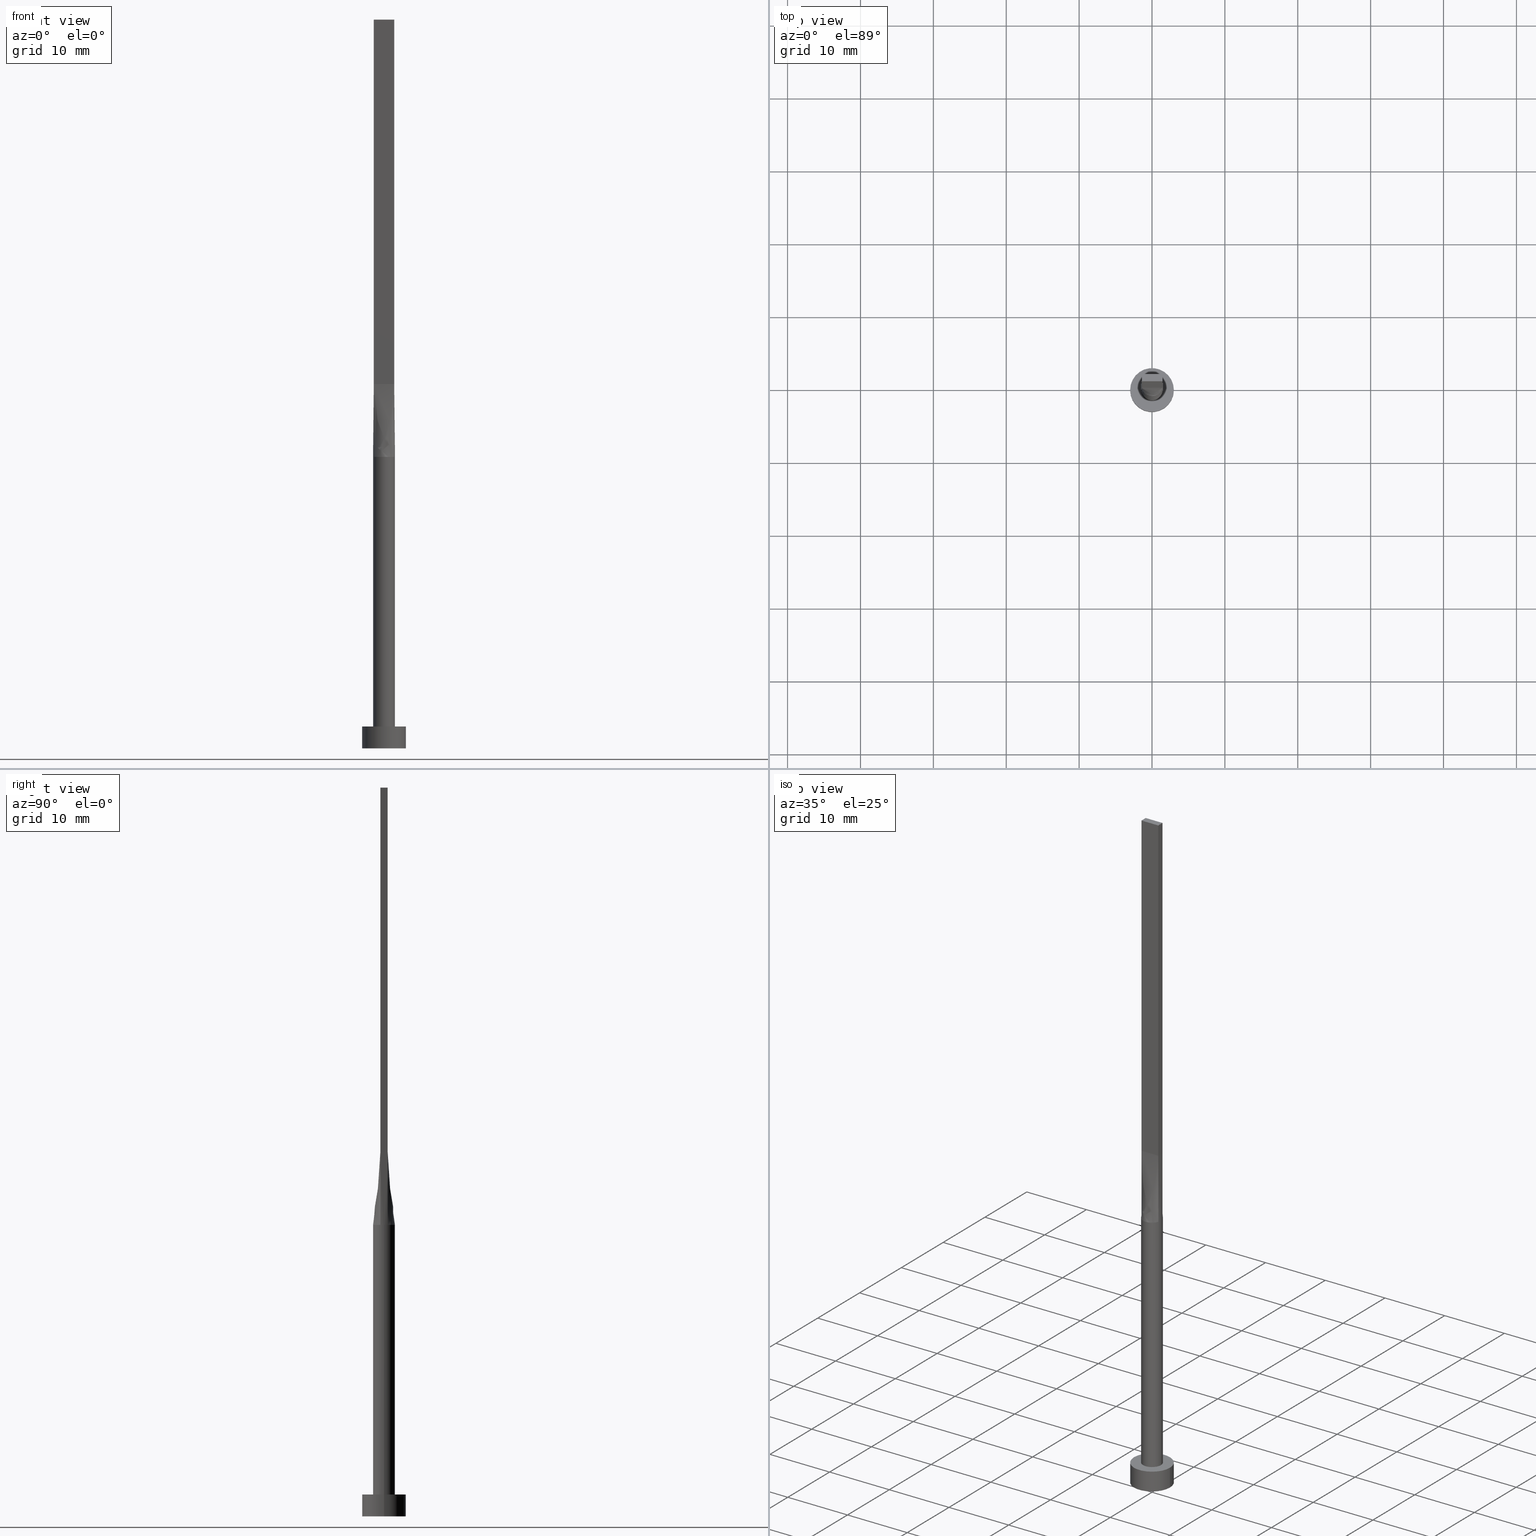
[diagram: canonical four-view strip — front | top / right | iso, engineering-drawing reading convention]
A machine part, canonical four-view strip (front | top / right | iso — engineering-drawing reading convention). The complete STEP part file that produces these views, byte-faithful:
ISO-10303-21;
HEADER;
FILE_DESCRIPTION (( 'STEP AP203' ),
    '1' );
FILE_NAME ('2857.STEP',
    '2026-02-12T09:08:00',
    ( '' ),
    ( '' ),
    'SwSTEP 2.0',
    'SolidWorks 2019',
    '' );
FILE_SCHEMA (( 'CONFIG_CONTROL_DESIGN' ));
ENDSEC;

DATA;
#1 = B_SPLINE_SURFACE_WITH_KNOTS ( 'NONE', 3, 1, ( 
 ( #51, #526 ),
 ( #124, #311 ),
 ( #492, #498 ),
 ( #284, #402 ),
 ( #477, #165 ),
 ( #249, #388 ) ),
 .UNSPECIFIED., .F., .F., .F.,
 ( 4, 2, 4 ),
 ( 2, 2 ),
 ( 0.000000000000000000, 0.5000000000000000000, 1.000000000000000000 ),
 ( 0.000000000000000000, 1.000000000000000000 ),
 .UNSPECIFIED. ) ;
#2 = DIRECTION ( 'NONE',  ( 0.000000000000000000, 0.000000000000000000, 1.000000000000000000 ) ) ;
#3 = CARTESIAN_POINT ( 'NONE',  ( -0.5833333333333332593, -0.4999999999999996669, 50.00000000000000711 ) ) ;
#4 = LINE ( 'NONE', #274, #140 ) ;
#5 = APPROVAL_DATE_TIME ( #38, #123 ) ;
#6 = CARTESIAN_POINT ( 'NONE',  ( 1.399999999999999689, 0.5000000000000002220, 100.0000000000000000 ) ) ;
#7 = ORIENTED_EDGE ( 'NONE', *, *, #436, .T. ) ;
#8 = DIRECTION ( 'NONE',  ( 1.000000000000000000, -7.744301232039317914E-17, 0.000000000000000000 ) ) ;
#9 = DIRECTION ( 'NONE',  ( 1.000000000000000000, 0.000000000000000000, 0.000000000000000000 ) ) ;
#10 = ORIENTED_EDGE ( 'NONE', *, *, #158, .T. ) ;
#11 = EDGE_CURVE ( 'NONE', #344, #238, #507, .T. ) ;
#12 = CARTESIAN_POINT ( 'NONE',  ( 0.000000000000000000, 0.000000000000000000, 3.000000000000000000 ) ) ;
#13 = ORIENTED_EDGE ( 'NONE', *, *, #227, .T. ) ;
#14 = ORIENTED_EDGE ( 'NONE', *, *, #372, .T. ) ;
#15 = PERSON_AND_ORGANIZATION_ROLE ( 'design_supplier' ) ;
#16 = VERTEX_POINT ( 'NONE', #315 ) ;
#17 = AXIS2_PLACEMENT_3D ( 'NONE', #88, #430, #42 ) ;
#18 = CARTESIAN_POINT ( 'NONE',  ( -1.316960349798174557, 0.7311494208568980468, 40.00000000000001421 ) ) ;
#19 = ORIENTED_EDGE ( 'NONE', *, *, #334, .F. ) ;
#20 = CARTESIAN_POINT ( 'NONE',  ( -1.399999999999999689, 0.5000000000000002220, 100.0000000000000000 ) ) ;
#21 = EDGE_CURVE ( 'NONE', #81, #238, #450, .T. ) ;
#22 = EDGE_LOOP ( 'NONE', ( #106, #58, #563, #459 ) ) ;
#23 = CARTESIAN_POINT ( 'NONE',  ( -1.373020107211261109, -0.6153643240040214124, 39.99999999999999289 ) ) ;
#24 = EDGE_LOOP ( 'NONE', ( #475, #510, #412, #432 ) ) ;
#25 = DIRECTION ( 'NONE',  ( -2.168404344971009361E-16, -1.000000000000000000, 0.000000000000000000 ) ) ;
#26 = DIRECTION ( 'NONE',  ( 0.000000000000000000, 0.000000000000000000, 1.000000000000000000 ) ) ;
#27 = CARTESIAN_POINT ( 'NONE',  ( -1.399999999999999689, 0.5000000000000002220, 100.0000000000000000 ) ) ;
#28 = CARTESIAN_POINT ( 'NONE',  ( 1.500000000000000222, 1.836970198721030181E-16, 3.000000000000000000 ) ) ;
#29 = CARTESIAN_POINT ( 'NONE',  ( 0.8182264876570946033, -1.266912425724810998, 40.00000000000000000 ) ) ;
#30 = CARTESIAN_POINT ( 'NONE',  ( 0.4666666666666705598, 0.5000000000000002220, 50.00000000000000711 ) ) ;
#31 = AXIS2_PLACEMENT_3D ( 'NONE', #89, #283, #50 ) ;
#32 = CARTESIAN_POINT ( 'NONE',  ( 1.373020107211261109, 0.6153643240040217455, 39.99999999999999289 ) ) ;
#33 = DIRECTION ( 'NONE',  ( 1.000000000000000000, 0.000000000000000000, 0.000000000000000000 ) ) ;
#34 = DIRECTION ( 'NONE',  ( 1.000000000000000000, 0.000000000000000000, 0.000000000000000000 ) ) ;
#35 = VECTOR ( 'NONE', #353, 1000.000000000000000 ) ;
#36 = CARTESIAN_POINT ( 'NONE',  ( -1.062433464748102407, 1.070418989248103525, 39.99999999999998579 ) ) ;
#37 = CARTESIAN_POINT ( 'NONE',  ( 1.412612867392256222, 0.5045045954972349200, 40.00000000000000000 ) ) ;
#38 = DATE_AND_TIME ( #175, #210 ) ;
#39 = DIRECTION ( 'NONE',  ( 0.001261285608005575801, -0.0004504591457162011002, 0.9999991031221843185 ) ) ;
#40 = ORIENTED_EDGE ( 'NONE', *, *, #359, .F. ) ;
#41 = ORIENTED_EDGE ( 'NONE', *, *, #105, .F. ) ;
#42 = DIRECTION ( 'NONE',  ( 2.168404344971008868E-16, -1.000000000000000000, 0.000000000000000000 ) ) ;
#43 = ADVANCED_FACE ( 'NONE', ( #233, #139 ), #95, .T. ) ;
#44 = ADVANCED_FACE ( 'NONE', ( #47 ), #416, .F. ) ;
#45 = ADVANCED_FACE ( 'NONE', ( #52 ), #366, .F. ) ;
#46 = CYLINDRICAL_SURFACE ( 'NONE', #509, 3.000000000000000444 ) ;
#47 = FACE_OUTER_BOUND ( 'NONE', #248, .T. ) ;
#48 = CARTESIAN_POINT ( 'NONE',  ( -1.399999999999999911, -0.4999999999999995559, 100.0000000000000000 ) ) ;
#49 = VERTEX_POINT ( 'NONE', #277 ) ;
#50 = DIRECTION ( 'NONE',  ( 1.000000000000000000, 0.000000000000000000, 0.000000000000000000 ) ) ;
#51 = CARTESIAN_POINT ( 'NONE',  ( -1.412612867392256444, 0.5045045954972343649, 40.00000000000000000 ) ) ;
#52 = FACE_OUTER_BOUND ( 'NONE', #375, .T. ) ;
#53 = DIRECTION ( 'NONE',  ( 7.744301232039317914E-17, 1.000000000000000000, -0.000000000000000000 ) ) ;
#54 = CARTESIAN_POINT ( 'NONE',  ( -1.399999999999999689, 0.5000000000000002220, 100.0000000000000000 ) ) ;
#55 = EDGE_CURVE ( 'NONE', #83, #453, #138, .T. ) ;
#56 = PERSON_AND_ORGANIZATION ( #577, #561 ) ;
#57 = DIRECTION ( 'NONE',  ( 0.000000000000000000, 0.000000000000000000, 1.000000000000000000 ) ) ;
#58 = ORIENTED_EDGE ( 'NONE', *, *, #359, .T. ) ;
#59 = CALENDAR_DATE ( 2026, 12, 2 ) ;
#60 = VERTEX_POINT ( 'NONE', #192 ) ;
#61 = VERTEX_POINT ( 'NONE', #550 ) ;
#62 = AXIS2_PLACEMENT_3D ( 'NONE', #12, #327, #195 ) ;
#63 = PLANE ( 'NONE',  #245 ) ;
#64 = EDGE_CURVE ( 'NONE', #380, #238, #538, .T. ) ;
#65 = CIRCLE ( 'NONE', #301, 3.000000000000000444 ) ;
#66 = CARTESIAN_POINT ( 'NONE',  ( -0.1761797990592596230, -1.500000000000000000, 40.00000000000000000 ) ) ;
#67 = ORIENTED_EDGE ( 'NONE', *, *, #389, .F. ) ;
#68 = CARTESIAN_POINT ( 'NONE',  ( 0.1166666666666668073, -0.4999999999999997780, 50.00000000000000711 ) ) ;
#69 = CC_DESIGN_PERSON_AND_ORGANIZATION_ASSIGNMENT ( #169, #358, ( #497 ) ) ;
#70 = CARTESIAN_POINT ( 'NONE',  ( 3.000000000000000444, 3.673940397442060361E-16, 3.000000000000000000 ) ) ;
#71 = CARTESIAN_POINT ( 'NONE',  ( 0.000000000000000000, 0.000000000000000000, 0.000000000000000000 ) ) ;
#72 = APPROVAL_ROLE ( '' ) ;
#73 =( LENGTH_UNIT ( ) NAMED_UNIT ( * ) SI_UNIT ( .MILLI., .METRE. ) );
#74 = DIRECTION ( 'NONE',  ( 0.000000000000000000, 0.000000000000000000, 1.000000000000000000 ) ) ;
#75 = AXIS2_PLACEMENT_3D ( 'NONE', #141, #182, #472 ) ;
#76 = APPROVAL_STATUS ( 'not_yet_approved' ) ;
#77 = APPLICATION_PROTOCOL_DEFINITION ( 'international standard', 'config_control_design', 1994, #84 ) ;
#78 = ORIENTED_EDGE ( 'NONE', *, *, #294, .F. ) ;
#79 = CARTESIAN_POINT ( 'NONE',  ( -0.3520402531411755964, -1.468082505288407447, 40.00000000000000000 ) ) ;
#80 = PERSON_AND_ORGANIZATION_ROLE ( 'creator' ) ;
#81 = VERTEX_POINT ( 'NONE', #320 ) ;
#82 = EDGE_CURVE ( 'NONE', #16, #423, #438, .T. ) ;
#83 = VERTEX_POINT ( 'NONE', #331 ) ;
#84 = APPLICATION_CONTEXT ( 'configuration controlled 3d designs of mechanical parts and assemblies' ) ;
#85 = DIRECTION ( 'NONE',  ( 0.000000000000000000, 0.000000000000000000, 1.000000000000000000 ) ) ;
#86 = ORIENTED_EDGE ( 'NONE', *, *, #227, .F. ) ;
#87 = ORIENTED_EDGE ( 'NONE', *, *, #396, .T. ) ;
#88 = CARTESIAN_POINT ( 'NONE',  ( 1.399999999999999911, -0.4999999999999997780, 100.0000000000000000 ) ) ;
#89 = CARTESIAN_POINT ( 'NONE',  ( 0.000000000000000000, 0.000000000000000000, 3.000000000000000000 ) ) ;
#90 = PERSON_AND_ORGANIZATION ( #577, #561 ) ;
#91 = CARTESIAN_POINT ( 'NONE',  ( -1.406306433696127955, 0.5022522977486171269, 45.00000000000000000 ) ) ;
#92 = ORIENTED_EDGE ( 'NONE', *, *, #156, .F. ) ;
#93 = CARTESIAN_POINT ( 'NONE',  ( -1.500000000000000000, -6.850053904551815961E-17, 40.00000000000000711 ) ) ;
#94 = PERSON_AND_ORGANIZATION ( #577, #561 ) ;
#95 = PLANE ( 'NONE',  #62 ) ;
#96 = ORIENTED_EDGE ( 'NONE', *, *, #107, .T. ) ;
#97 = CARTESIAN_POINT ( 'NONE',  ( -0.9333333333333307946, 0.5000000000000002220, 50.00000000000000000 ) ) ;
#98 = EDGE_LOOP ( 'NONE', ( #292, #205, #316, #471 ) ) ;
#99 = AXIS2_PLACEMENT_3D ( 'NONE', #184, #74, #449 ) ;
#100 = CC_DESIGN_SECURITY_CLASSIFICATION ( #114, ( #154 ) ) ;
#101 = FACE_OUTER_BOUND ( 'NONE', #278, .T. ) ;
#102 = CARTESIAN_POINT ( 'NONE',  ( 0.6732153042498572049, -1.351288176626052939, 40.00000000000000000 ) ) ;
#103 = ORIENTED_EDGE ( 'NONE', *, *, #107, .F. ) ;
#104 = CARTESIAN_POINT ( 'NONE',  ( -0.8166666666666667629, -0.4999999999999996669, 50.00000000000000000 ) ) ;
#105 = EDGE_CURVE ( 'NONE', #160, #60, #541, .T. ) ;
#106 = ORIENTED_EDGE ( 'NONE', *, *, #105, .T. ) ;
#107 = EDGE_CURVE ( 'NONE', #367, #529, #244, .T. ) ;
#108 = CARTESIAN_POINT ( 'NONE',  ( -1.161819288130433891, 0.9587178835757675932, 40.00000000000000711 ) ) ;
#109 = CARTESIAN_POINT ( 'NONE',  ( -1.399999999999999689, 0.5000000000000002220, 50.00000000000000000 ) ) ;
#110 = LINE ( 'NONE', #27, #518 ) ;
#111 = CARTESIAN_POINT ( 'NONE',  ( 1.412612867392256222, -0.5045045954972348090, 40.00000000000000000 ) ) ;
#112 = CIRCLE ( 'NONE', #363, 1.500000000000000222 ) ;
#113 = CYLINDRICAL_SURFACE ( 'NONE', #215, 1.500000000000000222 ) ;
#114 = SECURITY_CLASSIFICATION ( '', '', #470 ) ;
#115 = EDGE_CURVE ( 'NONE', #209, #160, #499, .T. ) ;
#116 = CARTESIAN_POINT ( 'NONE',  ( -0.1166666666666622831, 0.5000000000000002220, 50.00000000000000711 ) ) ;
#117 = CARTESIAN_POINT ( 'NONE',  ( -1.316960349798174557, 0.7311494208568980468, 40.00000000000001421 ) ) ;
#118 = CIRCLE ( 'NONE', #199, 1.500000000000000222 ) ;
#119 = LINE ( 'NONE', #262, #569 ) ;
#120 = CARTESIAN_POINT ( 'NONE',  ( 0.6732153042498577600, 1.351288176626052717, 40.00000000000000000 ) ) ;
#121 = DATE_AND_TIME ( #524, #364 ) ;
#122 = CARTESIAN_POINT ( 'NONE',  ( 0.8166666666666695384, 0.5000000000000002220, 50.00000000000000000 ) ) ;
#123 = APPROVAL ( #76, 'NEUR�EN�' ) ;
#124 = CARTESIAN_POINT ( 'NONE',  ( -1.469173953365106922, 0.3461335547732524165, 39.99999999999999289 ) ) ;
#125 = CARTESIAN_POINT ( 'NONE',  ( 0.8182264876570948253, 1.266912425724810110, 40.00000000000000000 ) ) ;
#126 = COORDINATED_UNIVERSAL_TIME_OFFSET ( 1, 0, .AHEAD. ) ;
#127 = CARTESIAN_POINT ( 'NONE',  ( -1.406306433696128178, -0.5022522977486166829, 45.00000000000000000 ) ) ;
#128 = CARTESIAN_POINT ( 'NONE',  ( 1.406306433696127955, 0.5022522977486175710, 45.00000000000000000 ) ) ;
#129 = CC_DESIGN_APPROVAL ( #397, ( #114 ) ) ;
#130 = CARTESIAN_POINT ( 'NONE',  ( -0.6732153042498583151, -1.351288176626052051, 40.00000000000000000 ) ) ;
#131 = PRODUCT_DEFINITION_SHAPE ( 'NONE', 'NONE',  #295 ) ;
#132 = APPLICATION_CONTEXT ( 'configuration controlled 3d designs of mechanical parts and assemblies' ) ;
#133 = LINE ( 'NONE', #307, #455 ) ;
#134 = EDGE_LOOP ( 'NONE', ( #467, #10, #87, #103, #504, #78 ) ) ;
#135 = ORIENTED_EDGE ( 'NONE', *, *, #573, .T. ) ;
#136 = CARTESIAN_POINT ( 'NONE',  ( -1.399999999999999689, 0.5000000000000002220, 100.0000000000000000 ) ) ;
#137 = CARTESIAN_POINT ( 'NONE',  ( 1.399999999999999689, 0.5000000000000002220, 50.00000000000000000 ) ) ;
#138 = CIRCLE ( 'NONE', #479, 3.000000000000000444 ) ;
#139 = FACE_OUTER_BOUND ( 'NONE', #387, .T. ) ;
#140 = VECTOR ( 'NONE', #419, 1000.000000000000000 ) ;
#141 = CARTESIAN_POINT ( 'NONE',  ( 0.000000000000000000, 0.000000000000000000, 3.000000000000000000 ) ) ;
#142 = LOCAL_TIME ( 10, 8, 0.000000000000000000, #409 ) ;
#143 = CARTESIAN_POINT ( 'NONE',  ( -1.283333333333332549, 0.5000000000000002220, 50.00000000000000000 ) ) ;
#144 = PERSON_AND_ORGANIZATION_ROLE ( 'classification_officer' ) ;
#145 = CARTESIAN_POINT ( 'NONE',  ( 1.399999999999999689, 0.5000000000000002220, 50.00000000000000000 ) ) ;
#146 = ORIENTED_EDGE ( 'NONE', *, *, #494, .T. ) ;
#147 = ADVANCED_FACE ( 'NONE', ( #456 ), #46, .T. ) ;
#148 = APPROVAL_DATE_TIME ( #191, #397 ) ;
#149 = ORIENTED_EDGE ( 'NONE', *, *, #542, .F. ) ;
#150 = ORIENTED_EDGE ( 'NONE', *, *, #21, .F. ) ;
#151 = AXIS2_PLACEMENT_3D ( 'NONE', #500, #544, #280 ) ;
#152 = ORIENTED_EDGE ( 'NONE', *, *, #443, .T. ) ;
#153 =( GEOMETRIC_REPRESENTATION_CONTEXT ( 3 ) GLOBAL_UNCERTAINTY_ASSIGNED_CONTEXT ( ( #243 ) ) GLOBAL_UNIT_ASSIGNED_CONTEXT ( ( #73, #365, #187 ) ) REPRESENTATION_CONTEXT ( 'NONE', 'WORKASPACE' ) );
#154 = PRODUCT_DEFINITION_FORMATION_WITH_SPECIFIED_SOURCE ( 'LIBOVOLN�', '', #497, .NOT_KNOWN. ) ;
#155 = ADVANCED_FACE ( 'NONE', ( #461 ), #1, .T. ) ;
#156 = EDGE_CURVE ( 'NONE', #238, #209, #566, .T. ) ;
#157 = CARTESIAN_POINT ( 'NONE',  ( -1.166666666666666519, -0.4999999999999995559, 50.00000000000000000 ) ) ;
#158 = EDGE_CURVE ( 'NONE', #16, #319, #253, .T. ) ;
#159 = CARTESIAN_POINT ( 'NONE',  ( 0.8166666666666667629, -0.4999999999999997780, 50.00000000000000000 ) ) ;
#160 = VERTEX_POINT ( 'NONE', #547 ) ;
#161 = CARTESIAN_POINT ( 'NONE',  ( -1.412612867392256444, 0.5045045954972340319, 40.00000000000000000 ) ) ;
#162 = DIRECTION ( 'NONE',  ( -0.000000000000000000, -0.000000000000000000, -1.000000000000000000 ) ) ;
#163 = CARTESIAN_POINT ( 'NONE',  ( 1.062433464748102629, -1.070418989248103747, 39.99999999999998579 ) ) ;
#164 = ADVANCED_FACE ( 'NONE', ( #101 ), #323, .T. ) ;
#165 = CARTESIAN_POINT ( 'NONE',  ( -1.399999999999999911, -0.3333333333333330928, 50.00000000000000000 ) ) ;
#166 = CARTESIAN_POINT ( 'NONE',  ( 1.399999999999999911, -0.4999999999999997780, 50.00000000000000000 ) ) ;
#167 = CARTESIAN_POINT ( 'NONE',  ( 0.1166666666666710261, 0.5000000000000002220, 50.00000000000000711 ) ) ;
#168 = CARTESIAN_POINT ( 'NONE',  ( -0.3520402531411749858, 1.468082505288407891, 40.00000000000000000 ) ) ;
#169 = PERSON_AND_ORGANIZATION ( #577, #561 ) ;
#170 = AXIS2_PLACEMENT_3D ( 'NONE', #6, #462, #188 ) ;
#171 = CARTESIAN_POINT ( 'NONE',  ( 0.8182264876570948253, 1.266912425724810110, 40.00000000000000000 ) ) ;
#172 = CARTESIAN_POINT ( 'NONE',  ( -0.6732153042498576490, 1.351288176626052495, 40.00000000000000000 ) ) ;
#173 = ADVANCED_FACE ( 'NONE', ( #454 ), #369, .F. ) ;
#174 = CARTESIAN_POINT ( 'NONE',  ( 0.000000000000000000, 0.000000000000000000, 40.00000000000000000 ) ) ;
#175 = CALENDAR_DATE ( 2026, 12, 2 ) ;
#176 = CARTESIAN_POINT ( 'NONE',  ( -1.399999999999999911, -0.4999999999999995559, 50.00000000000000000 ) ) ;
#177 = DIRECTION ( 'NONE',  ( -0.001261285608005553900, -0.0004504591457162878364, 0.9999991031221843185 ) ) ;
#178 = DIRECTION ( 'NONE',  ( -1.000000000000000000, 0.000000000000000000, 0.000000000000000000 ) ) ;
#179 = DIRECTION ( 'NONE',  ( 0.000000000000000000, 0.000000000000000000, 1.000000000000000000 ) ) ;
#180 = VERTEX_POINT ( 'NONE', #413 ) ;
#181 = VECTOR ( 'NONE', #564, 1000.000000000000000 ) ;
#182 = DIRECTION ( 'NONE',  ( -0.000000000000000000, -0.000000000000000000, -1.000000000000000000 ) ) ;
#183 = ADVANCED_FACE ( 'NONE', ( #239 ), #190, .T. ) ;
#184 = CARTESIAN_POINT ( 'NONE',  ( 0.000000000000000000, 0.000000000000000000, 40.00000000000000000 ) ) ;
#185 = CC_DESIGN_DATE_AND_TIME_ASSIGNMENT ( #121, #310, ( #295 ) ) ;
#186 = AXIS2_PLACEMENT_3D ( 'NONE', #48, #53, #200 ) ;
#187 =( NAMED_UNIT ( * ) SI_UNIT ( $, .STERADIAN. ) SOLID_ANGLE_UNIT ( ) );
#188 = DIRECTION ( 'NONE',  ( 0.000000000000000000, -0.000000000000000000, -1.000000000000000000 ) ) ;
#189 = ORIENTED_EDGE ( 'NONE', *, *, #542, .T. ) ;
#190 = B_SPLINE_SURFACE_WITH_KNOTS ( 'NONE', 3, 1, ( 
 ( #329, #385 ),
 ( #23, #562 ),
 ( #495, #157 ),
 ( #342, #533 ),
 ( #514, #104 ),
 ( #230, #3 ),
 ( #130, #317 ),
 ( #79, #474 ),
 ( #66, #516 ),
 ( #570, #68 ),
 ( #431, #567 ),
 ( #102, #394 ),
 ( #29, #213 ),
 ( #163, #159 ),
 ( #247, #346 ),
 ( #343, #478 ),
 ( #204, #348 ),
 ( #111, #166 ) ),
 .UNSPECIFIED., .F., .F., .F.,
 ( 4, 2, 2, 2, 2, 2, 2, 2, 4 ),
 ( 2, 2 ),
 ( 0.000000000000000000, 0.1250000000000000000, 0.2500000000000000000, 0.3750000000000000000, 0.5000000000000000000, 0.6250000000000000000, 0.7500000000000000000, 0.8750000000000000000, 1.000000000000000000 ),
 ( 0.000000000000000000, 1.000000000000000000 ),
 .UNSPECIFIED. ) ;
#191 = DATE_AND_TIME ( #59, #407 ) ;
#192 = CARTESIAN_POINT ( 'NONE',  ( 1.412648369950143756, -0.5045174509283282260, 40.00000000000000000 ) ) ;
#193 = LINE ( 'NONE', #508, #532 ) ;
#194 = DATE_AND_TIME ( #378, #297 ) ;
#195 = DIRECTION ( 'NONE',  ( 1.000000000000000000, 0.000000000000000000, -0.000000000000000000 ) ) ;
#196 = CARTESIAN_POINT ( 'NONE',  ( 3.000000000000000444, 3.673940397442060361E-16, 0.000000000000000000 ) ) ;
#197 = APPROVAL_STATUS ( 'not_yet_approved' ) ;
#198 = CARTESIAN_POINT ( 'NONE',  ( 0.000000000000000000, 0.000000000000000000, 0.000000000000000000 ) ) ;
#199 = AXIS2_PLACEMENT_3D ( 'NONE', #242, #425, #491 ) ;
#200 = DIRECTION ( 'NONE',  ( -1.000000000000000000, 7.744301232039317914E-17, 0.000000000000000000 ) ) ;
#201 = ORIENTED_EDGE ( 'NONE', *, *, #334, .T. ) ;
#202 = VECTOR ( 'NONE', #464, 1000.000000000000000 ) ;
#203 = COORDINATED_UNIVERSAL_TIME_OFFSET ( 1, 0, .AHEAD. ) ;
#204 = CARTESIAN_POINT ( 'NONE',  ( 1.373020107211260665, -0.6153643240040224116, 40.00000000000000000 ) ) ;
#205 = ORIENTED_EDGE ( 'NONE', *, *, #21, .T. ) ;
#206 = ADVANCED_FACE ( 'NONE', ( #481 ), #63, .T. ) ;
#207 = ADVANCED_FACE ( 'NONE', ( #383 ), #231, .T. ) ;
#208 = DIRECTION ( 'NONE',  ( 1.000000000000000000, 0.000000000000000000, -0.000000000000000000 ) ) ;
#209 = VERTEX_POINT ( 'NONE', #176 ) ;
#210 = LOCAL_TIME ( 10, 8, 0.000000000000000000, #263 ) ;
#211 = CARTESIAN_POINT ( 'NONE',  ( -1.062433464748102407, 1.070418989248103525, 39.99999999999998579 ) ) ;
#212 = CARTESIAN_POINT ( 'NONE',  ( 1.500000000000000222, -0.1732137494637014941, 40.00000000000000711 ) ) ;
#213 = CARTESIAN_POINT ( 'NONE',  ( 0.5833333333333334814, -0.4999999999999997780, 50.00000000000000000 ) ) ;
#214 = EDGE_CURVE ( 'NONE', #453, #83, #224, .T. ) ;
#215 = AXIS2_PLACEMENT_3D ( 'NONE', #483, #162, #302 ) ;
#216 = CARTESIAN_POINT ( 'NONE',  ( 0.2333333333333376114, 0.5000000000000002220, 50.00000000000000711 ) ) ;
#217 = CARTESIAN_POINT ( 'NONE',  ( 0.3520402531411749303, 1.468082505288407447, 40.00000000000000000 ) ) ;
#218 = DIRECTION ( 'NONE',  ( -0.000000000000000000, -0.000000000000000000, -1.000000000000000000 ) ) ;
#219 = DIRECTION ( 'NONE',  ( -1.000000000000000000, 0.000000000000000000, 0.000000000000000000 ) ) ;
#220 = CARTESIAN_POINT ( 'NONE',  ( 1.316960349798174557, 0.7311494208568982689, 40.00000000000001421 ) ) ;
#221 = EDGE_CURVE ( 'NONE', #288, #453, #578, .T. ) ;
#222 = CARTESIAN_POINT ( 'NONE',  ( 1.399999999999999911, -0.4999999999999997780, 100.0000000000000000 ) ) ;
#223 = FACE_OUTER_BOUND ( 'NONE', #382, .T. ) ;
#224 = CIRCLE ( 'NONE', #549, 3.000000000000000444 ) ;
#225 = CARTESIAN_POINT ( 'NONE',  ( 1.399999999999999689, 0.5000000000000002220, 50.00000000000000000 ) ) ;
#226 = APPROVAL_ROLE ( '' ) ;
#227 = EDGE_CURVE ( 'NONE', #468, #344, #119, .T. ) ;
#228 = CARTESIAN_POINT ( 'NONE',  ( 0.000000000000000000, 0.000000000000000000, 40.00000000000000000 ) ) ;
#229 = EDGE_CURVE ( 'NONE', #367, #160, #512, .T. ) ;
#230 = CARTESIAN_POINT ( 'NONE',  ( -0.8182264876570952694, -1.266912425724809665, 40.00000000000000000 ) ) ;
#231 = B_SPLINE_SURFACE_WITH_KNOTS ( 'NONE', 3, 1, ( 
 ( #559, #252 ),
 ( #340, #435 ),
 ( #212, #390 ),
 ( #565, #400 ),
 ( #489, #265 ),
 ( #37, #225 ) ),
 .UNSPECIFIED., .F., .F., .F.,
 ( 4, 2, 4 ),
 ( 2, 2 ),
 ( 0.000000000000000000, 0.5000000000000000000, 1.000000000000000000 ),
 ( 0.000000000000000000, 1.000000000000000000 ),
 .UNSPECIFIED. ) ;
#232 = DIRECTION ( 'NONE',  ( 1.000000000000000000, -7.744301232039317914E-17, 0.000000000000000000 ) ) ;
#233 = FACE_BOUND ( 'NONE', #328, .T. ) ;
#234 = DIRECTION ( 'NONE',  ( 0.000000000000000000, 0.000000000000000000, 1.000000000000000000 ) ) ;
#235 = AXIS2_PLACEMENT_3D ( 'NONE', #71, #2, #34 ) ;
#236 = EDGE_LOOP ( 'NONE', ( #146, #298, #135, #293, #40 ) ) ;
#237 = CARTESIAN_POINT ( 'NONE',  ( -1.399999999999999689, 0.5000000000000002220, 50.00000000000000000 ) ) ;
#238 = VERTEX_POINT ( 'NONE', #258 ) ;
#239 = FACE_OUTER_BOUND ( 'NONE', #22, .T. ) ;
#240 = PRODUCT_RELATED_PRODUCT_CATEGORY ( 'detail', '', ( #497 ) ) ;
#241 = ORIENTED_EDGE ( 'NONE', *, *, #260, .F. ) ;
#242 = CARTESIAN_POINT ( 'NONE',  ( 0.000000000000000000, 0.000000000000000000, 3.000000000000000000 ) ) ;
#243 = UNCERTAINTY_MEASURE_WITH_UNIT (LENGTH_MEASURE( 1.000000000000000082E-05 ), #73, 'distance_accuracy_value', 'NONE');
#244 = LINE ( 'NONE', #552, #254 ) ;
#245 = AXIS2_PLACEMENT_3D ( 'NONE', #250, #26, #208 ) ;
#246 = ORIENTED_EDGE ( 'NONE', *, *, #436, .F. ) ;
#247 = CARTESIAN_POINT ( 'NONE',  ( 1.161819288130433669, -0.9587178835757682593, 40.00000000000000711 ) ) ;
#248 = EDGE_LOOP ( 'NONE', ( #506, #536, #19, #13 ) ) ;
#249 = CARTESIAN_POINT ( 'NONE',  ( -1.412612867392256444, -0.5045045954972340319, 40.00000000000000000 ) ) ;
#250 = CARTESIAN_POINT ( 'NONE',  ( 0.000000000000000000, 0.000000000000000000, 100.0000000000000000 ) ) ;
#251 = CARTESIAN_POINT ( 'NONE',  ( -0.8182264876570950474, 1.266912425724810554, 40.00000000000000000 ) ) ;
#252 = CARTESIAN_POINT ( 'NONE',  ( 1.399999999999999911, -0.4999999999999997780, 50.00000000000000000 ) ) ;
#253 = LINE ( 'NONE', #460, #558 ) ;
#254 = VECTOR ( 'NONE', #336, 1000.000000000000000 ) ;
#255 = CARTESIAN_POINT ( 'NONE',  ( 0.000000000000000000, 0.000000000000000000, 0.000000000000000000 ) ) ;
#256 = ORIENTED_EDGE ( 'NONE', *, *, #321, .F. ) ;
#257 = CARTESIAN_POINT ( 'NONE',  ( 0.000000000000000000, 0.000000000000000000, 3.000000000000000000 ) ) ;
#258 = CARTESIAN_POINT ( 'NONE',  ( -1.399999999999999689, 0.5000000000000002220, 50.00000000000000000 ) ) ;
#259 = DIRECTION ( 'NONE',  ( 1.000000000000000000, 2.664535259100375697E-15, 0.000000000000000000 ) ) ;
#260 = EDGE_CURVE ( 'NONE', #49, #180, #580, .T. ) ;
#261 = APPROVAL ( #446, 'NEUR�EN�' ) ;
#262 = CARTESIAN_POINT ( 'NONE',  ( 1.399999999999999689, 0.5000000000000002220, 100.0000000000000000 ) ) ;
#263 = COORDINATED_UNIVERSAL_TIME_OFFSET ( 1, 0, .AHEAD. ) ;
#264 = CARTESIAN_POINT ( 'NONE',  ( -0.8166666666666636543, 0.5000000000000002220, 50.00000000000000000 ) ) ;
#265 = CARTESIAN_POINT ( 'NONE',  ( 1.399999999999999689, 0.3333333333333333148, 50.00000000000000000 ) ) ;
#266 = PERSON_AND_ORGANIZATION ( #577, #561 ) ;
#267 = LINE ( 'NONE', #523, #440 ) ;
#268 = VECTOR ( 'NONE', #232, 1000.000000000000000 ) ;
#269 = CARTESIAN_POINT ( 'NONE',  ( -0.2333333333333290349, 0.5000000000000002220, 50.00000000000000000 ) ) ;
#270 = APPROVAL_PERSON_ORGANIZATION ( #266, #261, #226 ) ;
#271 = APPROVAL_PERSON_ORGANIZATION ( #90, #397, #557 ) ;
#272 = B_SPLINE_SURFACE_WITH_KNOTS ( 'NONE', 3, 1, ( 
 ( #551, #145 ),
 ( #332, #291 ),
 ( #220, #356 ),
 ( #525, #575 ),
 ( #308, #122 ),
 ( #171, #522 ),
 ( #120, #30 ),
 ( #401, #216 ),
 ( #398, #167 ),
 ( #571, #116 ),
 ( #168, #269 ),
 ( #172, #444 ),
 ( #357, #309 ),
 ( #36, #264 ),
 ( #426, #97 ),
 ( #18, #429 ),
 ( #556, #143 ),
 ( #161, #515 ) ),
 .UNSPECIFIED., .F., .F., .F.,
 ( 4, 2, 2, 2, 2, 2, 2, 2, 4 ),
 ( 2, 2 ),
 ( 0.000000000000000000, 0.1250000000000000000, 0.2500000000000000000, 0.3750000000000000000, 0.5000000000000000000, 0.6250000000000000000, 0.7500000000000000000, 0.8750000000000000000, 1.000000000000000000 ),
 ( 0.000000000000000000, 1.000000000000000000 ),
 .UNSPECIFIED. ) ;
#273 = DATE_AND_TIME ( #581, #142 ) ;
#274 = CARTESIAN_POINT ( 'NONE',  ( 1.399999999999999911, -0.4999999999999997780, 100.0000000000000000 ) ) ;
#275 = DIRECTION ( 'NONE',  ( -0.001261285608005553900, -0.0004504591457162553103, -0.9999991031221843185 ) ) ;
#276 = EDGE_LOOP ( 'NONE', ( #485, #362, #496, #92, #150 ) ) ;
#277 = CARTESIAN_POINT ( 'NONE',  ( 1.399999999999999911, -0.4999999999999997780, 100.0000000000000000 ) ) ;
#278 = EDGE_LOOP ( 'NONE', ( #384, #256, #189, #341 ) ) ;
#279 = CIRCLE ( 'NONE', #480, 1.500000000000000222 ) ;
#280 = DIRECTION ( 'NONE',  ( 1.000000000000000000, 0.000000000000000000, 0.000000000000000000 ) ) ;
#281 = CARTESIAN_POINT ( 'NONE',  ( 1.399999999999999689, 0.5000000000000002220, 100.0000000000000000 ) ) ;
#282 = ORIENTED_EDGE ( 'NONE', *, *, #335, .T. ) ;
#283 = DIRECTION ( 'NONE',  ( 0.000000000000000000, 0.000000000000000000, 1.000000000000000000 ) ) ;
#284 = CARTESIAN_POINT ( 'NONE',  ( -1.499999999999999556, -0.1732137494637007724, 40.00000000000000000 ) ) ;
#285 = CC_DESIGN_PERSON_AND_ORGANIZATION_ASSIGNMENT ( #355, #448, ( #295 ) ) ;
#286 = DIRECTION ( 'NONE',  ( -0.000000000000000000, -0.000000000000000000, -1.000000000000000000 ) ) ;
#287 = SHAPE_DEFINITION_REPRESENTATION ( #131, #546 ) ;
#288 = VERTEX_POINT ( 'NONE', #403 ) ;
#289 = CARTESIAN_POINT ( 'NONE',  ( -1.399999999999999911, -0.4999999999999995559, 100.0000000000000000 ) ) ;
#290 = CARTESIAN_POINT ( 'NONE',  ( 0.000000000000000000, 0.000000000000000000, 40.00000000000000000 ) ) ;
#291 = CARTESIAN_POINT ( 'NONE',  ( 1.283333333333333881, 0.5000000000000002220, 50.00000000000000000 ) ) ;
#292 = ORIENTED_EDGE ( 'NONE', *, *, #294, .T. ) ;
#293 = ORIENTED_EDGE ( 'NONE', *, *, #335, .F. ) ;
#294 = EDGE_CURVE ( 'NONE', #423, #81, #392, .T. ) ;
#295 = PRODUCT_DEFINITION ( 'NEZN�M�', '', #154, #434 ) ;
#296 = AXIS2_PLACEMENT_3D ( 'NONE', #20, #511, #502 ) ;
#297 = LOCAL_TIME ( 10, 8, 0.000000000000000000, #203 ) ;
#298 = ORIENTED_EDGE ( 'NONE', *, *, #82, .T. ) ;
#299 = EDGE_LOOP ( 'NONE', ( #282, #86, #246, #373 ) ) ;
#300 = CARTESIAN_POINT ( 'NONE',  ( -1.412646936588081381, 0.5045169241220069933, 40.00000000000000000 ) ) ;
#301 = AXIS2_PLACEMENT_3D ( 'NONE', #257, #347, #441 ) ;
#302 = DIRECTION ( 'NONE',  ( -1.000000000000000000, 0.000000000000000000, 0.000000000000000000 ) ) ;
#303 = FACE_OUTER_BOUND ( 'NONE', #134, .T. ) ;
#304 = DIRECTION ( 'NONE',  ( 1.000000000000000000, 0.000000000000000000, 0.000000000000000000 ) ) ;
#305 = ORIENTED_EDGE ( 'NONE', *, *, #493, .T. ) ;
#306 = DIRECTION ( 'NONE',  ( 0.000000000000000000, 0.000000000000000000, 1.000000000000000000 ) ) ;
#307 = CARTESIAN_POINT ( 'NONE',  ( -3.000000000000000444, 0.000000000000000000, 3.000000000000000000 ) ) ;
#308 = CARTESIAN_POINT ( 'NONE',  ( 1.062433464748102407, 1.070418989248103525, 40.00000000000000000 ) ) ;
#309 = CARTESIAN_POINT ( 'NONE',  ( -0.5833333333333295956, 0.5000000000000002220, 50.00000000000000000 ) ) ;
#310 = DATE_TIME_ROLE ( 'creation_date' ) ;
#311 = CARTESIAN_POINT ( 'NONE',  ( -1.399999999999999689, 0.3333333333333333703, 50.00000000000000000 ) ) ;
#312 = CARTESIAN_POINT ( 'NONE',  ( 0.6732153042498577600, 1.351288176626052717, 40.00000000000000000 ) ) ;
#313 = VECTOR ( 'NONE', #275, 1000.000000000000114 ) ;
#314 = ADVANCED_FACE ( 'NONE', ( #303 ), #113, .T. ) ;
#315 = CARTESIAN_POINT ( 'NONE',  ( 1.500000000000000000, 1.053334699963867185E-17, 40.00000000000000711 ) ) ;
#316 = ORIENTED_EDGE ( 'NONE', *, *, #11, .F. ) ;
#317 = CARTESIAN_POINT ( 'NONE',  ( -0.4666666666666665630, -0.4999999999999996669, 50.00000000000000711 ) ) ;
#318 = DIRECTION ( 'NONE',  ( 1.000000000000000000, 0.000000000000000000, -0.000000000000000000 ) ) ;
#319 = VERTEX_POINT ( 'NONE', #28 ) ;
#320 = CARTESIAN_POINT ( 'NONE',  ( -1.412646936588081381, 0.5045169241220069933, 40.00000000000000000 ) ) ;
#321 = EDGE_CURVE ( 'NONE', #61, #288, #65, .T. ) ;
#322 = CLOSED_SHELL ( 'NONE', ( #314, #147, #164, #43, #45, #545, #183, #207, #155, #476, #44, #370, #473, #173, #206 ) ) ;
#323 = CYLINDRICAL_SURFACE ( 'NONE', #75, 3.000000000000000444 ) ;
#324 = LINE ( 'NONE', #548, #519 ) ;
#325 = CARTESIAN_POINT ( 'NONE',  ( 0.000000000000000000, 0.000000000000000000, 3.000000000000000000 ) ) ;
#326 = VECTOR ( 'NONE', #218, 1000.000000000000000 ) ;
#327 = DIRECTION ( 'NONE',  ( 0.000000000000000000, 0.000000000000000000, 1.000000000000000000 ) ) ;
#328 = EDGE_LOOP ( 'NONE', ( #67, #368 ) ) ;
#329 = CARTESIAN_POINT ( 'NONE',  ( -1.412612867392256444, -0.5045045954972339208, 40.00000000000000000 ) ) ;
#330 = DIRECTION ( 'NONE',  ( -0.001261285608005532216, 0.0004504591457163203624, 0.9999991031221843185 ) ) ;
#331 = CARTESIAN_POINT ( 'NONE',  ( -3.000000000000000444, 0.000000000000000000, 0.000000000000000000 ) ) ;
#332 = CARTESIAN_POINT ( 'NONE',  ( 1.373020107211261109, 0.6153643240040217455, 39.99999999999999289 ) ) ;
#333 = ORIENTED_EDGE ( 'NONE', *, *, #555, .T. ) ;
#334 = EDGE_CURVE ( 'NONE', #468, #380, #482, .T. ) ;
#335 = EDGE_CURVE ( 'NONE', #180, #344, #193, .T. ) ;
#336 = DIRECTION ( 'NONE',  ( -0.000000000000000000, -0.000000000000000000, -1.000000000000000000 ) ) ;
#337 = ORIENTED_EDGE ( 'NONE', *, *, #158, .F. ) ;
#338 = ORIENTED_EDGE ( 'NONE', *, *, #389, .T. ) ;
#339 = AXIS2_PLACEMENT_3D ( 'NONE', #228, #442, #219 ) ;
#340 = CARTESIAN_POINT ( 'NONE',  ( 1.469173953365106700, -0.3461335547732530271, 39.99999999999999289 ) ) ;
#341 = ORIENTED_EDGE ( 'NONE', *, *, #55, .T. ) ;
#342 = CARTESIAN_POINT ( 'NONE',  ( -1.161819288130434114, -0.9587178835757669271, 40.00000000000000000 ) ) ;
#343 = CARTESIAN_POINT ( 'NONE',  ( 1.316960349798174335, -0.7311494208568987130, 40.00000000000001421 ) ) ;
#344 = VERTEX_POINT ( 'NONE', #137 ) ;
#345 = CARTESIAN_POINT ( 'NONE',  ( -0.3520402531411749858, 1.468082505288407891, 40.00000000000000000 ) ) ;
#346 = CARTESIAN_POINT ( 'NONE',  ( 0.9333333333333333481, -0.4999999999999997780, 50.00000000000000000 ) ) ;
#347 = DIRECTION ( 'NONE',  ( 0.000000000000000000, 0.000000000000000000, 1.000000000000000000 ) ) ;
#348 = CARTESIAN_POINT ( 'NONE',  ( 1.283333333333333437, -0.4999999999999997780, 50.00000000000000000 ) ) ;
#349 = VECTOR ( 'NONE', #177, 1000.000000000000114 ) ;
#350 = DIRECTION ( 'NONE',  ( -1.000000000000000000, 0.000000000000000000, 0.000000000000000000 ) ) ;
#351 = CARTESIAN_POINT ( 'NONE',  ( -1.373020107211261331, 0.6153643240040217455, 40.00000000000000000 ) ) ;
#352 = CC_DESIGN_PERSON_AND_ORGANIZATION_ASSIGNMENT ( #94, #15, ( #154 ) ) ;
#353 = DIRECTION ( 'NONE',  ( -0.000000000000000000, -0.000000000000000000, -1.000000000000000000 ) ) ;
#354 = CARTESIAN_POINT ( 'NONE',  ( 0.000000000000000000, 0.000000000000000000, 3.000000000000000000 ) ) ;
#355 = PERSON_AND_ORGANIZATION ( #577, #561 ) ;
#356 = CARTESIAN_POINT ( 'NONE',  ( 1.166666666666667851, 0.5000000000000002220, 50.00000000000000000 ) ) ;
#357 = CARTESIAN_POINT ( 'NONE',  ( -0.8182264876570950474, 1.266912425724810554, 40.00000000000000000 ) ) ;
#358 = PERSON_AND_ORGANIZATION_ROLE ( 'design_owner' ) ;
#359 = EDGE_CURVE ( 'NONE', #60, #180, #324, .T. ) ;
#360 = CARTESIAN_POINT ( 'NONE',  ( -1.500000000000000222, 0.000000000000000000, 3.000000000000000000 ) ) ;
#361 = EDGE_LOOP ( 'NONE', ( #333, #241, #452, #14 ) ) ;
#362 = ORIENTED_EDGE ( 'NONE', *, *, #229, .T. ) ;
#363 = AXIS2_PLACEMENT_3D ( 'NONE', #354, #234, #414 ) ;
#364 = LOCAL_TIME ( 10, 8, 0.000000000000000000, #126 ) ;
#365 =( NAMED_UNIT ( * ) PLANE_ANGLE_UNIT ( ) SI_UNIT ( $, .RADIAN. ) );
#366 = PLANE ( 'NONE',  #576 ) ;
#367 = VERTEX_POINT ( 'NONE', #93 ) ;
#368 = ORIENTED_EDGE ( 'NONE', *, *, #396, .F. ) ;
#369 = PLANE ( 'NONE',  #17 ) ;
#370 = ADVANCED_FACE ( 'NONE', ( #469 ), #428, .F. ) ;
#371 = EDGE_CURVE ( 'NONE', #288, #61, #377, .T. ) ;
#372 = EDGE_CURVE ( 'NONE', #417, #209, #376, .T. ) ;
#373 = ORIENTED_EDGE ( 'NONE', *, *, #260, .T. ) ;
#374 = DIRECTION ( 'NONE',  ( 0.000000000000000000, 0.000000000000000000, 1.000000000000000000 ) ) ;
#375 = EDGE_LOOP ( 'NONE', ( #381, #553 ) ) ;
#376 = LINE ( 'NONE', #289, #202 ) ;
#377 = CIRCLE ( 'NONE', #31, 3.000000000000000444 ) ;
#378 = CALENDAR_DATE ( 2026, 12, 2 ) ;
#379 = FACE_OUTER_BOUND ( 'NONE', #98, .T. ) ;
#380 = VERTEX_POINT ( 'NONE', #54 ) ;
#381 = ORIENTED_EDGE ( 'NONE', *, *, #55, .F. ) ;
#382 = EDGE_LOOP ( 'NONE', ( #337, #537, #41, #501, #96, #338 ) ) ;
#383 = FACE_OUTER_BOUND ( 'NONE', #236, .T. ) ;
#384 = ORIENTED_EDGE ( 'NONE', *, *, #221, .F. ) ;
#385 = CARTESIAN_POINT ( 'NONE',  ( -1.399999999999999911, -0.4999999999999995559, 50.00000000000000000 ) ) ;
#386 = APPROVAL_PERSON_ORGANIZATION ( #487, #123, #72 ) ;
#387 = EDGE_LOOP ( 'NONE', ( #554, #463 ) ) ;
#388 = CARTESIAN_POINT ( 'NONE',  ( -1.399999999999999911, -0.4999999999999995559, 50.00000000000000000 ) ) ;
#389 = EDGE_CURVE ( 'NONE', #529, #319, #118, .T. ) ;
#390 = CARTESIAN_POINT ( 'NONE',  ( 1.399999999999999689, -0.1666666666666667684, 50.00000000000000000 ) ) ;
#391 = CARTESIAN_POINT ( 'NONE',  ( -0.1761797990592590402, 1.499999999999999778, 40.00000000000000000 ) ) ;
#392 = B_SPLINE_CURVE_WITH_KNOTS ( 'NONE', 3,
 ( #574, #32, #405, #439, #527, #125, #312, #217, #399, #391, #345, #572, #251, #211, #108, #117, #351, #300 ),
 .UNSPECIFIED., .F., .F.,
 ( 4, 2, 2, 2, 2, 2, 2, 2, 4 ),
 ( 0.000000000000000000, 0.1250000000000000000, 0.2500000000000000000, 0.3750000000000000000, 0.5000000000000000000, 0.6250000000000000000, 0.7500000000000000000, 0.8750000000000000000, 1.000000000000000000 ),
 .UNSPECIFIED. ) ;
#393 = CARTESIAN_POINT ( 'NONE',  ( 1.399999999999999689, 0.5000000000000002220, 100.0000000000000000 ) ) ;
#394 = CARTESIAN_POINT ( 'NONE',  ( 0.4666666666666667851, -0.4999999999999997780, 50.00000000000000000 ) ) ;
#395 = AXIS2_PLACEMENT_3D ( 'NONE', #174, #306, #304 ) ;
#396 = EDGE_CURVE ( 'NONE', #319, #529, #112, .T. ) ;
#397 = APPROVAL ( #197, 'NEUR�EN�' ) ;
#398 = CARTESIAN_POINT ( 'NONE',  ( 0.1761797990592590679, 1.500000000000000222, 40.00000000000000000 ) ) ;
#399 = CARTESIAN_POINT ( 'NONE',  ( 0.1761797990592590679, 1.500000000000000222, 40.00000000000000000 ) ) ;
#400 = CARTESIAN_POINT ( 'NONE',  ( 1.399999999999999689, 0.1666666666666665464, 50.00000000000000000 ) ) ;
#401 = CARTESIAN_POINT ( 'NONE',  ( 0.3520402531411749303, 1.468082505288407447, 40.00000000000000000 ) ) ;
#402 = CARTESIAN_POINT ( 'NONE',  ( -1.399999999999999689, -0.1666666666666665464, 50.00000000000000000 ) ) ;
#403 = CARTESIAN_POINT ( 'NONE',  ( 3.000000000000000444, 3.673940397442060361E-16, 3.000000000000000000 ) ) ;
#404 = VECTOR ( 'NONE', #457, 1000.000000000000000 ) ;
#405 = CARTESIAN_POINT ( 'NONE',  ( 1.316960349798174557, 0.7311494208568982689, 40.00000000000001421 ) ) ;
#406 = VECTOR ( 'NONE', #350, 1000.000000000000000 ) ;
#407 = LOCAL_TIME ( 10, 8, 0.000000000000000000, #543 ) ;
#408 = DIRECTION ( 'NONE',  ( -0.000000000000000000, -0.000000000000000000, -1.000000000000000000 ) ) ;
#409 = COORDINATED_UNIVERSAL_TIME_OFFSET ( 1, 0, .AHEAD. ) ;
#410 = CARTESIAN_POINT ( 'NONE',  ( 1.412628473635865189, 0.5045102250504699404, 40.00000000000000000 ) ) ;
#411 = APPROVAL_DATE_TIME ( #273, #261 ) ;
#412 = ORIENTED_EDGE ( 'NONE', *, *, #493, .F. ) ;
#413 = CARTESIAN_POINT ( 'NONE',  ( 1.399999999999999911, -0.4999999999999997780, 50.00000000000000000 ) ) ;
#414 = DIRECTION ( 'NONE',  ( 1.000000000000000000, 0.000000000000000000, 0.000000000000000000 ) ) ;
#415 = APPLICATION_PROTOCOL_DEFINITION ( 'international standard', 'config_control_design', 1994, #132 ) ;
#416 = PLANE ( 'NONE',  #170 ) ;
#417 = VERTEX_POINT ( 'NONE', #530 ) ;
#418 = DIRECTION ( 'NONE',  ( -0.000000000000000000, -0.000000000000000000, -1.000000000000000000 ) ) ;
#419 = DIRECTION ( 'NONE',  ( -2.168404344971008868E-16, 1.000000000000000000, 0.000000000000000000 ) ) ;
#420 = CIRCLE ( 'NONE', #99, 1.500000000000000222 ) ;
#421 = EDGE_LOOP ( 'NONE', ( #201, #305, #152, #7 ) ) ;
#422 = CARTESIAN_POINT ( 'NONE',  ( 0.000000000000000000, 0.000000000000000000, 0.000000000000000000 ) ) ;
#423 = VERTEX_POINT ( 'NONE', #410 ) ;
#424 = ORIENTED_EDGE ( 'NONE', *, *, #214, .T. ) ;
#425 = DIRECTION ( 'NONE',  ( 0.000000000000000000, 0.000000000000000000, 1.000000000000000000 ) ) ;
#426 = CARTESIAN_POINT ( 'NONE',  ( -1.161819288130433891, 0.9587178835757675932, 40.00000000000000711 ) ) ;
#427 = EDGE_LOOP ( 'NONE', ( #539, #513, #424, #149 ) ) ;
#428 = PLANE ( 'NONE',  #296 ) ;
#429 = CARTESIAN_POINT ( 'NONE',  ( -1.166666666666665186, 0.5000000000000002220, 50.00000000000000000 ) ) ;
#430 = DIRECTION ( 'NONE',  ( -1.000000000000000000, -2.168404344971008868E-16, 0.000000000000000000 ) ) ;
#431 = CARTESIAN_POINT ( 'NONE',  ( 0.3520402531411743752, -1.468082505288408113, 40.00000000000000000 ) ) ;
#432 = ORIENTED_EDGE ( 'NONE', *, *, #64, .T. ) ;
#433 = VECTOR ( 'NONE', #39, 1000.000000000000114 ) ;
#434 = DESIGN_CONTEXT ( 'detailed design', #132, 'design' ) ;
#435 = CARTESIAN_POINT ( 'NONE',  ( 1.399999999999999911, -0.3333333333333333148, 50.00000000000000000 ) ) ;
#436 = EDGE_CURVE ( 'NONE', #49, #468, #4, .T. ) ;
#437 = EDGE_CURVE ( 'NONE', #81, #367, #420, .T. ) ;
#438 = CIRCLE ( 'NONE', #151, 1.500000000000000222 ) ;
#439 = CARTESIAN_POINT ( 'NONE',  ( 1.161819288130433891, 0.9587178835757675932, 40.00000000000000000 ) ) ;
#440 = VECTOR ( 'NONE', #8, 1000.000000000000000 ) ;
#441 = DIRECTION ( 'NONE',  ( 1.000000000000000000, 0.000000000000000000, 0.000000000000000000 ) ) ;
#442 = DIRECTION ( 'NONE',  ( -0.000000000000000000, -0.000000000000000000, -1.000000000000000000 ) ) ;
#443 = EDGE_CURVE ( 'NONE', #417, #49, #267, .T. ) ;
#444 = CARTESIAN_POINT ( 'NONE',  ( -0.4666666666666626773, 0.5000000000000002220, 50.00000000000000000 ) ) ;
#445 = DIRECTION ( 'NONE',  ( 0.000000000000000000, 0.000000000000000000, 1.000000000000000000 ) ) ;
#446 = APPROVAL_STATUS ( 'not_yet_approved' ) ;
#447 = MANIFOLD_SOLID_BREP ( 'P�idat vysunut�m5', #322 ) ;
#448 = PERSON_AND_ORGANIZATION_ROLE ( 'creator' ) ;
#449 = DIRECTION ( 'NONE',  ( 1.000000000000000000, 0.000000000000000000, 0.000000000000000000 ) ) ;
#450 = LINE ( 'NONE', #91, #433 ) ;
#451 = CC_DESIGN_PERSON_AND_ORGANIZATION_ASSIGNMENT ( #56, #80, ( #154 ) ) ;
#452 = ORIENTED_EDGE ( 'NONE', *, *, #443, .F. ) ;
#453 = VERTEX_POINT ( 'NONE', #196 ) ;
#454 = FACE_OUTER_BOUND ( 'NONE', #299, .T. ) ;
#455 = VECTOR ( 'NONE', #531, 1000.000000000000000 ) ;
#456 = FACE_OUTER_BOUND ( 'NONE', #427, .T. ) ;
#457 = DIRECTION ( 'NONE',  ( -1.000000000000000000, -0.000000000000000000, -0.000000000000000000 ) ) ;
#458 = FACE_OUTER_BOUND ( 'NONE', #361, .T. ) ;
#459 = ORIENTED_EDGE ( 'NONE', *, *, #115, .T. ) ;
#460 = CARTESIAN_POINT ( 'NONE',  ( 1.500000000000000222, 1.836970198721030181E-16, 40.00000000000000000 ) ) ;
#461 = FACE_OUTER_BOUND ( 'NONE', #276, .T. ) ;
#462 = DIRECTION ( 'NONE',  ( 0.000000000000000000, -1.000000000000000000, 0.000000000000000000 ) ) ;
#463 = ORIENTED_EDGE ( 'NONE', *, *, #371, .T. ) ;
#464 = DIRECTION ( 'NONE',  ( -0.000000000000000000, -0.000000000000000000, -1.000000000000000000 ) ) ;
#465 = PERSON_AND_ORGANIZATION ( #577, #561 ) ;
#466 = DIRECTION ( 'NONE',  ( 1.000000000000000000, 0.000000000000000000, 0.000000000000000000 ) ) ;
#467 = ORIENTED_EDGE ( 'NONE', *, *, #82, .F. ) ;
#468 = VERTEX_POINT ( 'NONE', #281 ) ;
#469 = FACE_OUTER_BOUND ( 'NONE', #24, .T. ) ;
#470 = SECURITY_CLASSIFICATION_LEVEL ( 'unclassified' ) ;
#471 = ORIENTED_EDGE ( 'NONE', *, *, #573, .F. ) ;
#472 = DIRECTION ( 'NONE',  ( -1.000000000000000000, 0.000000000000000000, 0.000000000000000000 ) ) ;
#473 = ADVANCED_FACE ( 'NONE', ( #458 ), #505, .F. ) ;
#474 = CARTESIAN_POINT ( 'NONE',  ( -0.2333333333333331705, -0.4999999999999996669, 50.00000000000000711 ) ) ;
#475 = ORIENTED_EDGE ( 'NONE', *, *, #156, .T. ) ;
#476 = ADVANCED_FACE ( 'NONE', ( #379 ), #272, .T. ) ;
#477 = CARTESIAN_POINT ( 'NONE',  ( -1.469173953365107144, -0.3461335547732520834, 40.00000000000000000 ) ) ;
#478 = CARTESIAN_POINT ( 'NONE',  ( 1.166666666666666519, -0.4999999999999997780, 50.00000000000000000 ) ) ;
#479 = AXIS2_PLACEMENT_3D ( 'NONE', #198, #374, #9 ) ;
#480 = AXIS2_PLACEMENT_3D ( 'NONE', #560, #179, #259 ) ;
#481 = FACE_OUTER_BOUND ( 'NONE', #421, .T. ) ;
#482 = LINE ( 'NONE', #393, #406 ) ;
#483 = CARTESIAN_POINT ( 'NONE',  ( 0.000000000000000000, 0.000000000000000000, 40.00000000000000000 ) ) ;
#484 = LINE ( 'NONE', #534, #268 ) ;
#485 = ORIENTED_EDGE ( 'NONE', *, *, #437, .T. ) ;
#486 = CC_DESIGN_APPROVAL ( #261, ( #154 ) ) ;
#487 = PERSON_AND_ORGANIZATION ( #577, #561 ) ;
#488 = CC_DESIGN_PERSON_AND_ORGANIZATION_ASSIGNMENT ( #465, #144, ( #114 ) ) ;
#489 = CARTESIAN_POINT ( 'NONE',  ( 1.469173953365107144, 0.3461335547732528051, 40.00000000000000000 ) ) ;
#490 = LINE ( 'NONE', #128, #349 ) ;
#491 = DIRECTION ( 'NONE',  ( 1.000000000000000000, 0.000000000000000000, 0.000000000000000000 ) ) ;
#492 = CARTESIAN_POINT ( 'NONE',  ( -1.500000000000000666, 0.1732137494637012443, 40.00000000000000711 ) ) ;
#493 = EDGE_CURVE ( 'NONE', #380, #417, #110, .T. ) ;
#494 = EDGE_CURVE ( 'NONE', #60, #16, #279, .T. ) ;
#495 = CARTESIAN_POINT ( 'NONE',  ( -1.316960349798174557, -0.7311494208568978248, 40.00000000000001421 ) ) ;
#496 = ORIENTED_EDGE ( 'NONE', *, *, #115, .F. ) ;
#497 = PRODUCT ( '2857', '2857', '', ( #579 ) ) ;
#498 = CARTESIAN_POINT ( 'NONE',  ( -1.399999999999999689, 0.1666666666666666852, 50.00000000000000000 ) ) ;
#499 = LINE ( 'NONE', #127, #313 ) ;
#500 = CARTESIAN_POINT ( 'NONE',  ( 0.000000000000000000, 0.000000000000000000, 40.00000000000000000 ) ) ;
#501 = ORIENTED_EDGE ( 'NONE', *, *, #229, .F. ) ;
#502 = DIRECTION ( 'NONE',  ( 2.168404344971009361E-16, 1.000000000000000000, 0.000000000000000000 ) ) ;
#503 = DATE_TIME_ROLE ( 'classification_date' ) ;
#504 = ORIENTED_EDGE ( 'NONE', *, *, #437, .F. ) ;
#505 = PLANE ( 'NONE',  #186 ) ;
#506 = ORIENTED_EDGE ( 'NONE', *, *, #11, .T. ) ;
#507 = LINE ( 'NONE', #237, #404 ) ;
#508 = CARTESIAN_POINT ( 'NONE',  ( 1.399999999999999689, 0.5000000000000002220, 50.00000000000000000 ) ) ;
#509 = AXIS2_PLACEMENT_3D ( 'NONE', #325, #286, #178 ) ;
#510 = ORIENTED_EDGE ( 'NONE', *, *, #372, .F. ) ;
#511 = DIRECTION ( 'NONE',  ( 1.000000000000000000, -2.168404344971009361E-16, 0.000000000000000000 ) ) ;
#512 = CIRCLE ( 'NONE', #395, 1.500000000000000222 ) ;
#513 = ORIENTED_EDGE ( 'NONE', *, *, #221, .T. ) ;
#514 = CARTESIAN_POINT ( 'NONE',  ( -1.062433464748102852, -1.070418989248103081, 40.00000000000000000 ) ) ;
#515 = CARTESIAN_POINT ( 'NONE',  ( -1.399999999999999689, 0.5000000000000002220, 50.00000000000000000 ) ) ;
#516 = CARTESIAN_POINT ( 'NONE',  ( -0.1166666666666665297, -0.4999999999999996669, 50.00000000000000711 ) ) ;
#517 = AXIS2_PLACEMENT_3D ( 'NONE', #290, #57, #466 ) ;
#518 = VECTOR ( 'NONE', #25, 1000.000000000000000 ) ;
#519 = VECTOR ( 'NONE', #330, 1000.000000000000114 ) ;
#520 = CC_DESIGN_DATE_AND_TIME_ASSIGNMENT ( #194, #503, ( #114 ) ) ;
#521 = CC_DESIGN_APPROVAL ( #123, ( #295 ) ) ;
#522 = CARTESIAN_POINT ( 'NONE',  ( 0.5833333333333369231, 0.5000000000000002220, 50.00000000000000711 ) ) ;
#523 = CARTESIAN_POINT ( 'NONE',  ( -1.399999999999999911, -0.4999999999999995559, 100.0000000000000000 ) ) ;
#524 = CALENDAR_DATE ( 2026, 12, 2 ) ;
#525 = CARTESIAN_POINT ( 'NONE',  ( 1.161819288130433891, 0.9587178835757675932, 40.00000000000000000 ) ) ;
#526 = CARTESIAN_POINT ( 'NONE',  ( -1.399999999999999689, 0.5000000000000002220, 50.00000000000000000 ) ) ;
#527 = CARTESIAN_POINT ( 'NONE',  ( 1.062433464748102407, 1.070418989248103525, 40.00000000000000000 ) ) ;
#528 = CYLINDRICAL_SURFACE ( 'NONE', #339, 1.500000000000000222 ) ;
#529 = VERTEX_POINT ( 'NONE', #360 ) ;
#530 = CARTESIAN_POINT ( 'NONE',  ( -1.399999999999999911, -0.4999999999999995559, 100.0000000000000000 ) ) ;
#531 = DIRECTION ( 'NONE',  ( -0.000000000000000000, -0.000000000000000000, -1.000000000000000000 ) ) ;
#532 = VECTOR ( 'NONE', #540, 1000.000000000000000 ) ;
#533 = CARTESIAN_POINT ( 'NONE',  ( -0.9333333333333332371, -0.4999999999999995559, 50.00000000000000000 ) ) ;
#534 = CARTESIAN_POINT ( 'NONE',  ( -1.399999999999999911, -0.4999999999999995559, 50.00000000000000000 ) ) ;
#535 = DIRECTION ( 'NONE',  ( -0.000000000000000000, -0.000000000000000000, -1.000000000000000000 ) ) ;
#536 = ORIENTED_EDGE ( 'NONE', *, *, #64, .F. ) ;
#537 = ORIENTED_EDGE ( 'NONE', *, *, #494, .F. ) ;
#538 = LINE ( 'NONE', #136, #568 ) ;
#539 = ORIENTED_EDGE ( 'NONE', *, *, #371, .F. ) ;
#540 = DIRECTION ( 'NONE',  ( -2.168404344971008868E-16, 1.000000000000000000, -0.000000000000000000 ) ) ;
#541 = CIRCLE ( 'NONE', #517, 1.500000000000000222 ) ;
#542 = EDGE_CURVE ( 'NONE', #61, #83, #133, .T. ) ;
#543 = COORDINATED_UNIVERSAL_TIME_OFFSET ( 1, 0, .AHEAD. ) ;
#544 = DIRECTION ( 'NONE',  ( 0.000000000000000000, 0.000000000000000000, 1.000000000000000000 ) ) ;
#545 = ADVANCED_FACE ( 'NONE', ( #223 ), #528, .T. ) ;
#546 = ADVANCED_BREP_SHAPE_REPRESENTATION ( '2857', ( #447, #235 ), #153 ) ;
#547 = CARTESIAN_POINT ( 'NONE',  ( -1.412629890847167724, -0.5045107419440655327, 40.00000000000000000 ) ) ;
#548 = CARTESIAN_POINT ( 'NONE',  ( 1.406306433696127955, -0.5022522977486173490, 45.00000000000000000 ) ) ;
#549 = AXIS2_PLACEMENT_3D ( 'NONE', #255, #445, #33 ) ;
#550 = CARTESIAN_POINT ( 'NONE',  ( -3.000000000000000444, 0.000000000000000000, 3.000000000000000000 ) ) ;
#551 = CARTESIAN_POINT ( 'NONE',  ( 1.412612867392256444, 0.5045045954972344759, 40.00000000000000000 ) ) ;
#552 = CARTESIAN_POINT ( 'NONE',  ( -1.500000000000000222, 0.000000000000000000, 40.00000000000000000 ) ) ;
#553 = ORIENTED_EDGE ( 'NONE', *, *, #214, .F. ) ;
#554 = ORIENTED_EDGE ( 'NONE', *, *, #321, .T. ) ;
#555 = EDGE_CURVE ( 'NONE', #209, #180, #484, .T. ) ;
#556 = CARTESIAN_POINT ( 'NONE',  ( -1.373020107211261331, 0.6153643240040217455, 40.00000000000000000 ) ) ;
#557 = APPROVAL_ROLE ( '' ) ;
#558 = VECTOR ( 'NONE', #418, 1000.000000000000000 ) ;
#559 = CARTESIAN_POINT ( 'NONE',  ( 1.412612867392256222, -0.5045045954972351421, 40.00000000000000000 ) ) ;
#560 = CARTESIAN_POINT ( 'NONE',  ( 0.000000000000000000, 0.000000000000000000, 40.00000000000000000 ) ) ;
#561 = ORGANIZATION ( 'NEUR�EN�', 'NEUR�EN�', '' ) ;
#562 = CARTESIAN_POINT ( 'NONE',  ( -1.283333333333333215, -0.4999999999999995559, 50.00000000000000000 ) ) ;
#563 = ORIENTED_EDGE ( 'NONE', *, *, #555, .F. ) ;
#564 = DIRECTION ( 'NONE',  ( -2.168404344971009361E-16, -1.000000000000000000, 0.000000000000000000 ) ) ;
#565 = CARTESIAN_POINT ( 'NONE',  ( 1.499999999999999556, 0.1732137494637011610, 40.00000000000000000 ) ) ;
#566 = LINE ( 'NONE', #109, #181 ) ;
#567 = CARTESIAN_POINT ( 'NONE',  ( 0.2333333333333334481, -0.4999999999999997780, 50.00000000000000000 ) ) ;
#568 = VECTOR ( 'NONE', #535, 1000.000000000000000 ) ;
#569 = VECTOR ( 'NONE', #408, 1000.000000000000000 ) ;
#570 = CARTESIAN_POINT ( 'NONE',  ( 0.1761797990592584850, -1.499999999999999556, 40.00000000000000000 ) ) ;
#571 = CARTESIAN_POINT ( 'NONE',  ( -0.1761797990592590402, 1.499999999999999778, 40.00000000000000000 ) ) ;
#572 = CARTESIAN_POINT ( 'NONE',  ( -0.6732153042498576490, 1.351288176626052495, 40.00000000000000000 ) ) ;
#573 = EDGE_CURVE ( 'NONE', #423, #344, #490, .T. ) ;
#574 = CARTESIAN_POINT ( 'NONE',  ( 1.412628473635865189, 0.5045102250504699404, 40.00000000000000000 ) ) ;
#575 = CARTESIAN_POINT ( 'NONE',  ( 0.9333333333333356796, 0.5000000000000002220, 50.00000000000000000 ) ) ;
#576 = AXIS2_PLACEMENT_3D ( 'NONE', #422, #85, #318 ) ;
#577 = PERSON ( 'NEUR�EN�', 'NEUR�EN�', 'NEUR�EN�', ('NEUR�EN�'), ('NEUR�EN�'), ('NEUR�EN�') ) ;
#578 = LINE ( 'NONE', #70, #35 ) ;
#579 = MECHANICAL_CONTEXT ( 'NONE', #84, 'mechanical' ) ;
#580 = LINE ( 'NONE', #222, #326 ) ;
#581 = CALENDAR_DATE ( 2026, 12, 2 ) ;
ENDSEC;
END-ISO-10303-21;
